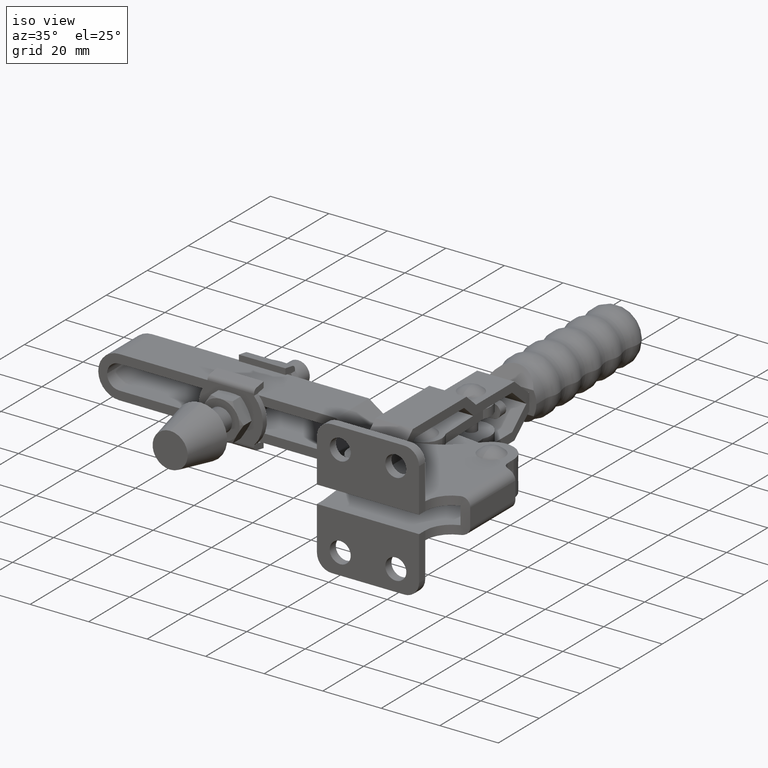
[diagram: clean part render]
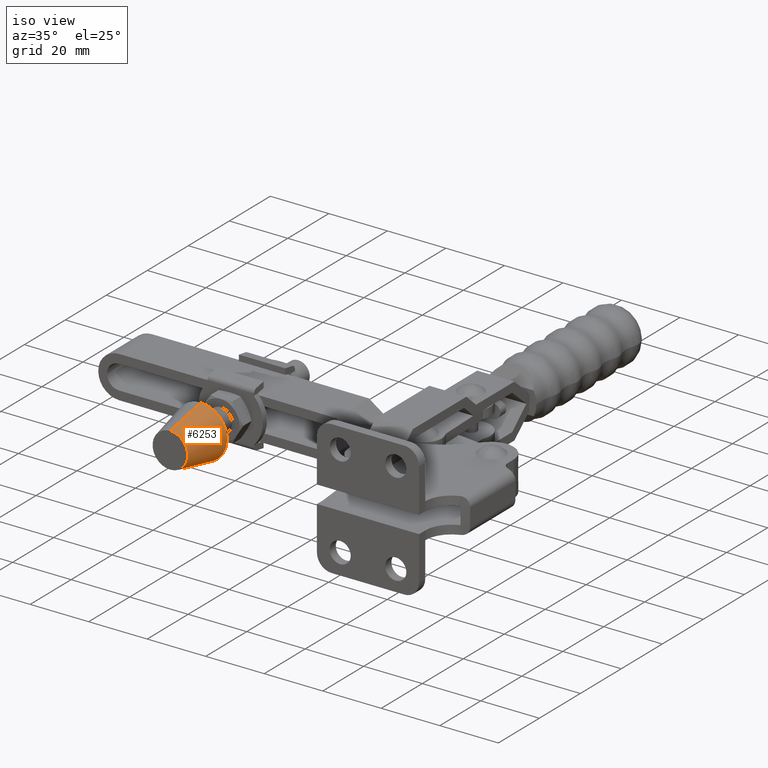
[diagram: same view with one face highlighted and labeled with its STEP entity id]
A machine part, iso view. The second image highlights one B-rep face of the part: STEP entity #6253.
In plain terms, the highlighted conical surface has half-angle 11.31 deg.
Its self-contained STEP definition (entity closure, byte-faithful):
#31 = CARTESIAN_POINT ( 'NONE',  ( -94.37569315383768800, 15.29999999999952100, 9.000000000000032000 ) ) ;
#313 = ORIENTED_EDGE ( 'NONE', *, *, #10045, .F. ) ;
#729 = VECTOR ( 'NONE', #2376, 1000.000000000000000 ) ;
#818 = DIRECTION ( 'NONE',  ( 0.0000000000000000000, 0.9805806756909202200, 0.1961161351381839900 ) ) ;
#1529 = DIRECTION ( 'NONE',  ( 0.0000000000000000000, 0.0000000000000000000, 1.000000000000000000 ) ) ;
#2047 = FACE_OUTER_BOUND ( 'NONE', #11916, .T. ) ;
#2376 = DIRECTION ( 'NONE',  ( 2.401729971581267900E-017, 0.9805806756909202200, -0.1961161351381839900 ) ) ;
#2711 = CARTESIAN_POINT ( 'NONE',  ( -94.37569315383768800, 0.2999999999995207600, 3.295974604355933500E-014 ) ) ;
#3183 = LINE ( 'NONE', #7946, #729 ) ;
#3336 = CARTESIAN_POINT ( 'NONE',  ( -94.37569315383768800, 0.2999999999995207600, -5.999999999999967100 ) ) ;
#3451 = VERTEX_POINT ( 'NONE', #10058 ) ;
#3624 = DIRECTION ( 'NONE',  ( -0.0000000000000000000, -1.000000000000000000, -0.0000000000000000000 ) ) ;
#4308 = CIRCLE ( 'NONE', #11221, 6.000000000000000000 ) ;
#4396 = VERTEX_POINT ( 'NONE', #9332 ) ;
#4693 = VERTEX_POINT ( 'NONE', #3336 ) ;
#5251 = DIRECTION ( 'NONE',  ( 0.0000000000000000000, 1.000000000000000000, 0.0000000000000000000 ) ) ;
#5289 = CARTESIAN_POINT ( 'NONE',  ( -94.37569315383768800, 0.2999999999995207600, 3.295974604355933500E-014 ) ) ;
#5328 = CIRCLE ( 'NONE', #6002, 9.000000000000000000 ) ;
#5511 = CONICAL_SURFACE ( 'NONE', #10601, 6.000000000000000000, 0.1973955598498806600 ) ;
#5625 = VECTOR ( 'NONE', #818, 1000.000000000000000 ) ;
#5783 = VERTEX_POINT ( 'NONE', #31 ) ;
#6002 = AXIS2_PLACEMENT_3D ( 'NONE', #9200, #3624, #10145 ) ;
#6230 = DIRECTION ( 'NONE',  ( 0.0000000000000000000, 0.0000000000000000000, -1.000000000000000000 ) ) ;
#6253 = ADVANCED_FACE ( 'NONE', ( #2047 ), #5511, .T. ) ;
#7391 = EDGE_CURVE ( 'NONE', #4396, #5783, #8122, .T. ) ;
#7563 = ORIENTED_EDGE ( 'NONE', *, *, #7391, .F. ) ;
#7946 = CARTESIAN_POINT ( 'NONE',  ( -94.37569315383768800, 0.2999999999995207600, -5.999999999999967100 ) ) ;
#8122 = LINE ( 'NONE', #11907, #5625 ) ;
#8204 = ORIENTED_EDGE ( 'NONE', *, *, #8345, .T. ) ;
#8345 = EDGE_CURVE ( 'NONE', #4693, #3451, #3183, .T. ) ;
#9200 = CARTESIAN_POINT ( 'NONE',  ( -94.37569315383768800, 15.29999999999952100, 3.295974604355933500E-014 ) ) ;
#9332 = CARTESIAN_POINT ( 'NONE',  ( -94.37569315383768800, 0.2999999999995207600, 6.000000000000032900 ) ) ;
#10045 = EDGE_CURVE ( 'NONE', #4693, #4396, #4308, .T. ) ;
#10058 = CARTESIAN_POINT ( 'NONE',  ( -94.37569315383768800, 15.29999999999952100, -8.999999999999966200 ) ) ;
#10145 = DIRECTION ( 'NONE',  ( 0.0000000000000000000, 0.0000000000000000000, -1.000000000000000000 ) ) ;
#10190 = EDGE_CURVE ( 'NONE', #3451, #5783, #5328, .T. ) ;
#10601 = AXIS2_PLACEMENT_3D ( 'NONE', #2711, #5251, #1529 ) ;
#11055 = ORIENTED_EDGE ( 'NONE', *, *, #10190, .T. ) ;
#11221 = AXIS2_PLACEMENT_3D ( 'NONE', #5289, #11791, #6230 ) ;
#11791 = DIRECTION ( 'NONE',  ( -0.0000000000000000000, -1.000000000000000000, -0.0000000000000000000 ) ) ;
#11907 = CARTESIAN_POINT ( 'NONE',  ( -94.37569315383768800, 0.2999999999995207600, 6.000000000000032900 ) ) ;
#11916 = EDGE_LOOP ( 'NONE', ( #313, #8204, #11055, #7563 ) ) ;